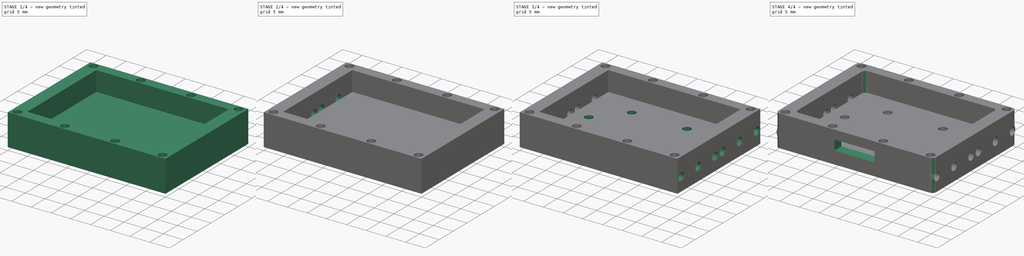
[diagram: build sequence overview — one tinted view per stage of 4, left to right]
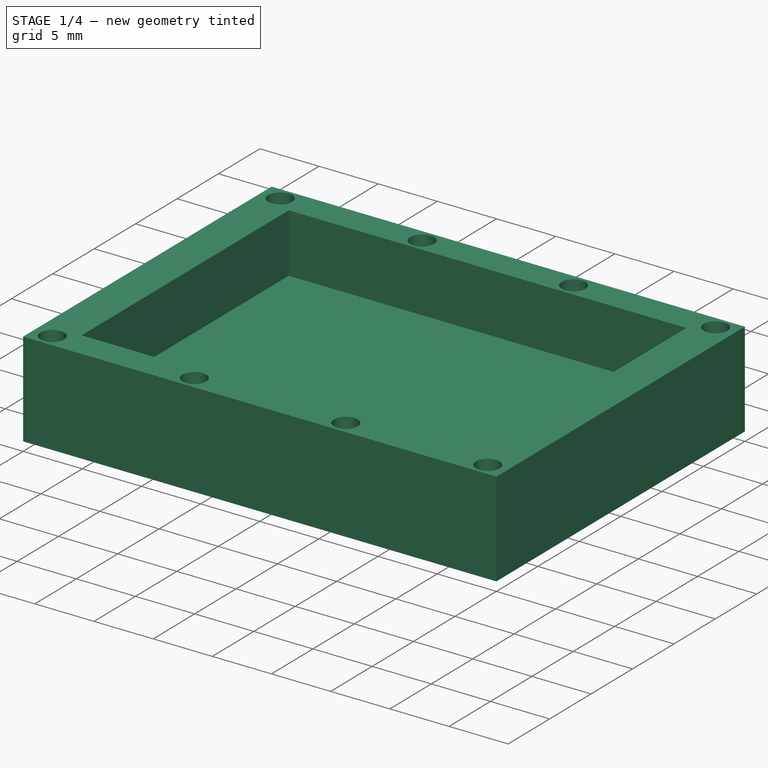
[diagram: stage 1 of 4 — iso view after this stage's code; geometry added in this stage tinted green]
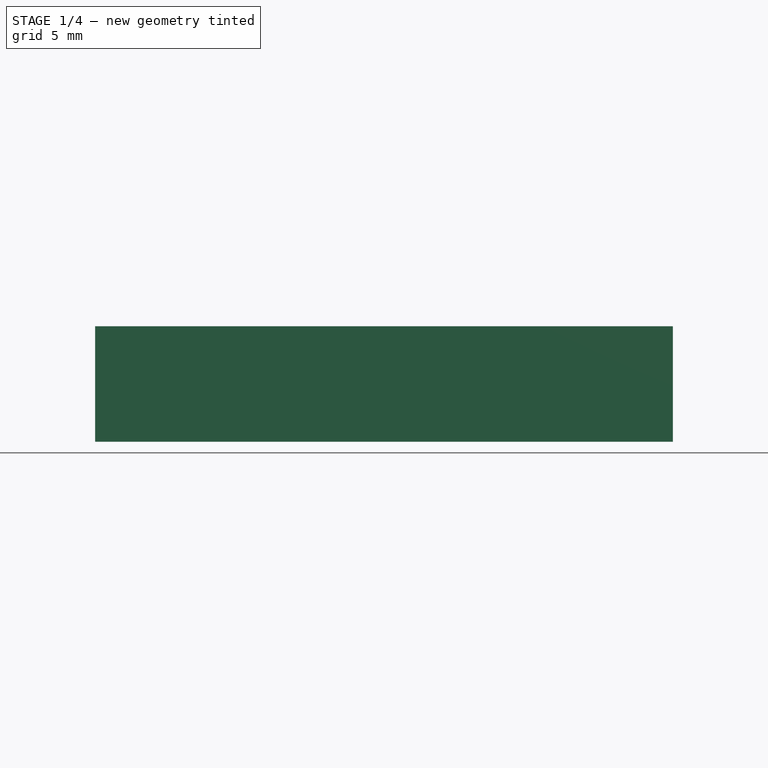
[diagram: stage 1 of 4 — front view after this stage's code; geometry added in this stage tinted green]
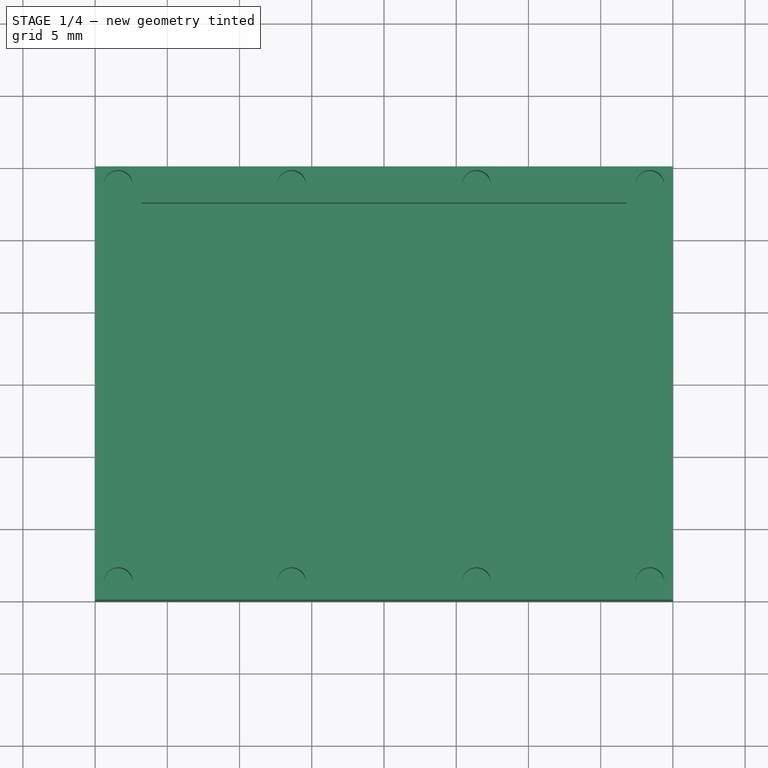
[diagram: stage 1 of 4 — top view after this stage's code; geometry added in this stage tinted green]
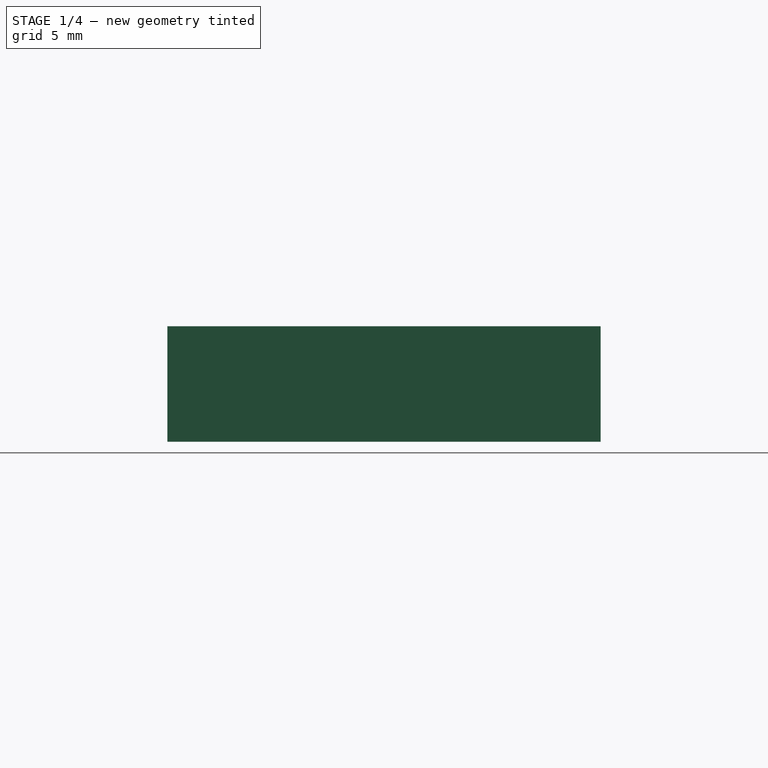
[diagram: stage 1 of 4 — right view after this stage's code; geometry added in this stage tinted green]
FCSTD DOCUMENT  (FreeCAD 0.18.4R)
Label: Sample_Holder_FP_Box_v1
License: All rights reserved
LicenseURL: http://en.wikipedia.org/wiki/All_rights_reserved
objects: Sketcher::SketchObject×7, PartDesign::Pocket×7, PartDesign::Pad×1, PartDesign::Fillet×1, PartDesign::Body×1
note: 25 computed .brp shape members not serialized (recipe doc carries the construction recipe); baked Part::Feature solids carry a one-line shape summary decoded from their .brp

FEATURE [Sketcher::SketchObject] Sketch
  MapMode = 2
  Support = -> [Sketch]
  sketch-geometry (4):
    g0: LineSegment StartX=-20 StartY=15 StartZ=0 EndX=20 EndY=15 EndZ=0
    g1: LineSegment StartX=20 StartY=15 StartZ=0 EndX=20 EndY=-15 EndZ=0
    g2: LineSegment StartX=20 StartY=-15 StartZ=0 EndX=-20 EndY=-15 EndZ=0
    g3: LineSegment StartX=-20 StartY=-15 StartZ=0 EndX=-20 EndY=15 EndZ=0
  constraints (12):
    c: Coincident(g0,g1)
    c: Coincident(g1,g2)
    c: Coincident(g2,g3)
    c: Coincident(g3,g0)
    c: Horizontal(g0)
    c: Horizontal(g2)
    c: Vertical(g1)
    c: Vertical(g3)
    c: DistanceX(g2,g2) = 40
    c: DistanceY(g1,g1) = 30
    c: DistanceY(g-1,g0) = 15
    c: DistanceX(g0,g-1) = 20
FEATURE [PartDesign::Pad] Pad
  Length = 8
  Length2 = 100
  Profile = -> Sketch
  Type = 0
FEATURE [Sketcher::SketchObject] Sketch001
  MapMode = 5
  Placement = pos=(0,0,8) rot=(0,0,1;0rad)
  Support = -> [Pad]
  sketch-geometry (12):
    g0: LineSegment StartX=-16.8 StartY=12.5 StartZ=0 EndX=16.8 EndY=12.5 EndZ=0
    g1: LineSegment StartX=16.8 StartY=12.5 StartZ=0 EndX=16.8 EndY=-12.5 EndZ=0
    g2: LineSegment StartX=16.8 StartY=-12.5 StartZ=0 EndX=-16.8 EndY=-12.5 EndZ=0
    g3: LineSegment StartX=-16.8 StartY=-12.5 StartZ=0 EndX=-16.8 EndY=12.5 EndZ=0
    g4: Circle CenterX=-18.4 CenterY=13.75 CenterZ=0 NormalX=0 NormalY=0 NormalZ=1 AngleXU=0 Radius=1
    g5: Circle CenterX=-6.4 CenterY=13.75 CenterZ=0 NormalX=0 NormalY=0 NormalZ=1 AngleXU=0 Radius=1
    g6: Circle CenterX=6.4 CenterY=13.75 CenterZ=0 NormalX=0 NormalY=0 NormalZ=1 AngleXU=0 Radius=1
    g7: Circle CenterX=18.4 CenterY=13.75 CenterZ=0 NormalX=0 NormalY=0 NormalZ=1 AngleXU=0 Radius=1
    g8: Circle CenterX=-18.4 CenterY=-13.75 CenterZ=0 NormalX=0 NormalY=0 NormalZ=1 AngleXU=0 Radius=1
    g9: Circle CenterX=-6.4 CenterY=-13.75 CenterZ=0 NormalX=0 NormalY=0 NormalZ=1 AngleXU=0 Radius=1
    g10: Circle CenterX=6.4 CenterY=-13.75 CenterZ=0 NormalX=0 NormalY=0 NormalZ=1 AngleXU=0 Radius=1
    g11: Circle CenterX=18.4 CenterY=-13.75 CenterZ=0 NormalX=0 NormalY=0 NormalZ=1 AngleXU=0 Radius=1
  constraints (29):
    c: Coincident(g0,g1)
    c: Coincident(g1,g2)
    c: Coincident(g2,g3)
    c: Coincident(g3,g0)
    c: Horizontal(g0)
    c: Horizontal(g2)
    c: Vertical(g1)
    c: Vertical(g3)
    c: DistanceX(g2,g2) = 33.6
    c: DistanceY(g1,g1) = 25
    c: DistanceX(g-1,g0) = 16.8
    c: DistanceY(g1,g-1) = 12.5
    c: Diameter(g7) = 2
    c: Equal(g7,g6)
    c: Equal(g7,g5)
    c: Equal(g7,g4)
    c: Equal(g7, g8-g11) x4
    c: Symmetric(g4,g8,g-1)
    c: Symmetric(g5,g9,g-1)
    c: Symmetric(g6,g10,g-1)
    c: Symmetric(g11,g7,g-1)
    c: Horizontal(g4,g5)
    c: Horizontal(g5,g6)
    c: Horizontal(g6,g7)
    c: DistanceY(g-1,g4) = 13.75
    c: DistanceX(g8,g2) = 1.6
    c: DistanceX(g1,g11) = 1.6
    c: DistanceX(g8,g9) = 12
    c: DistanceX(g10,g11) = 12
FEATURE [PartDesign::Pocket] Pocket
  BaseFeature = -> Pad
  Length = 5
  Length2 = 100
  Profile = -> Sketch001
  Type = 0
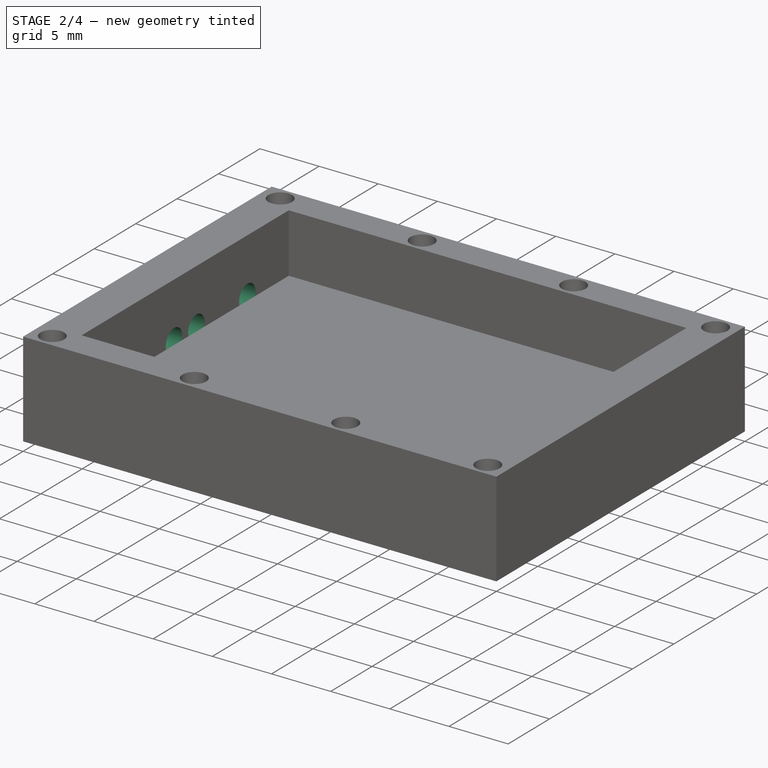
[diagram: stage 2 of 4 — iso view after this stage's code; geometry added in this stage tinted green]
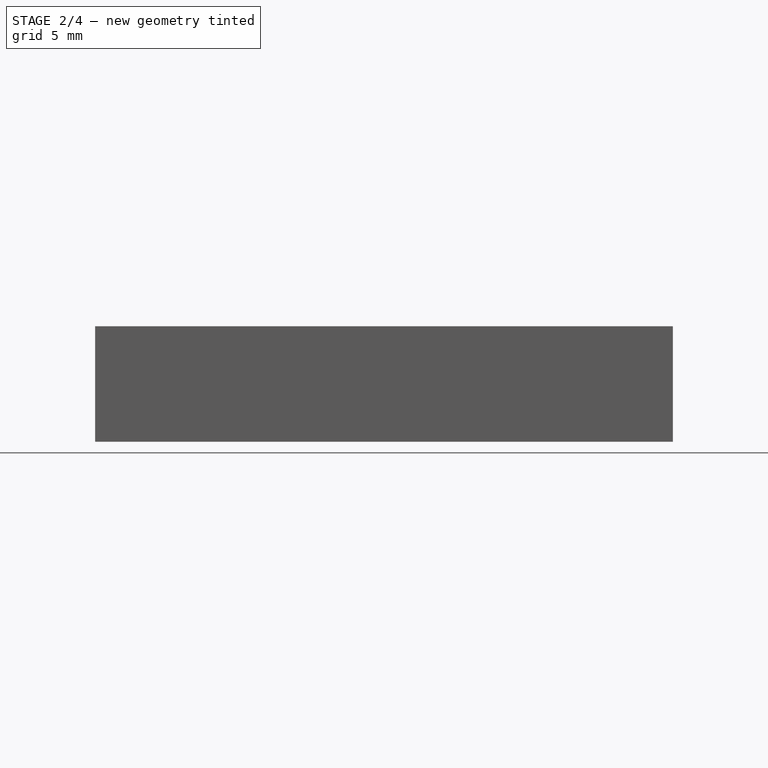
[diagram: stage 2 of 4 — front view after this stage's code; geometry added in this stage tinted green]
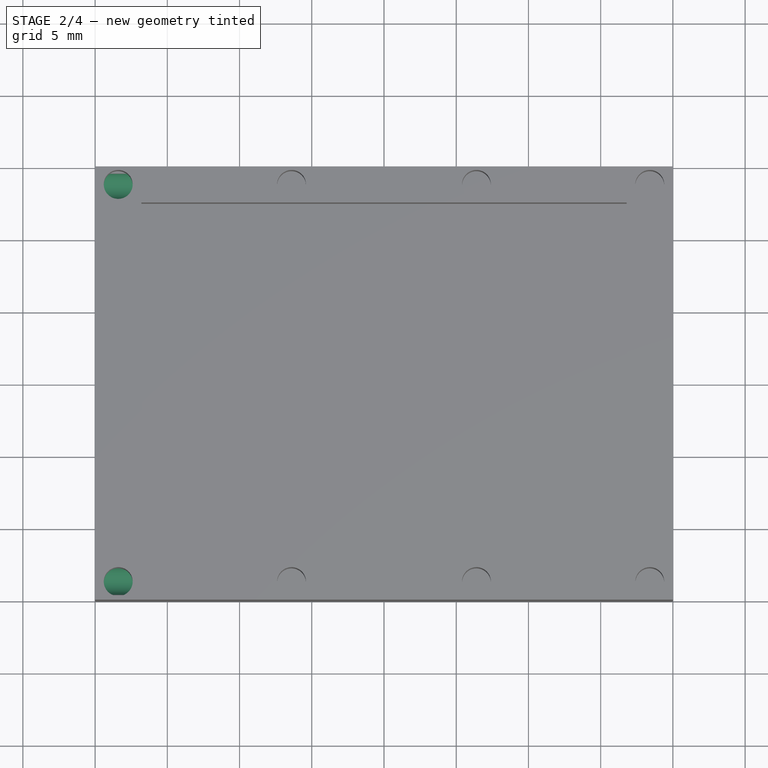
[diagram: stage 2 of 4 — top view after this stage's code; geometry added in this stage tinted green]
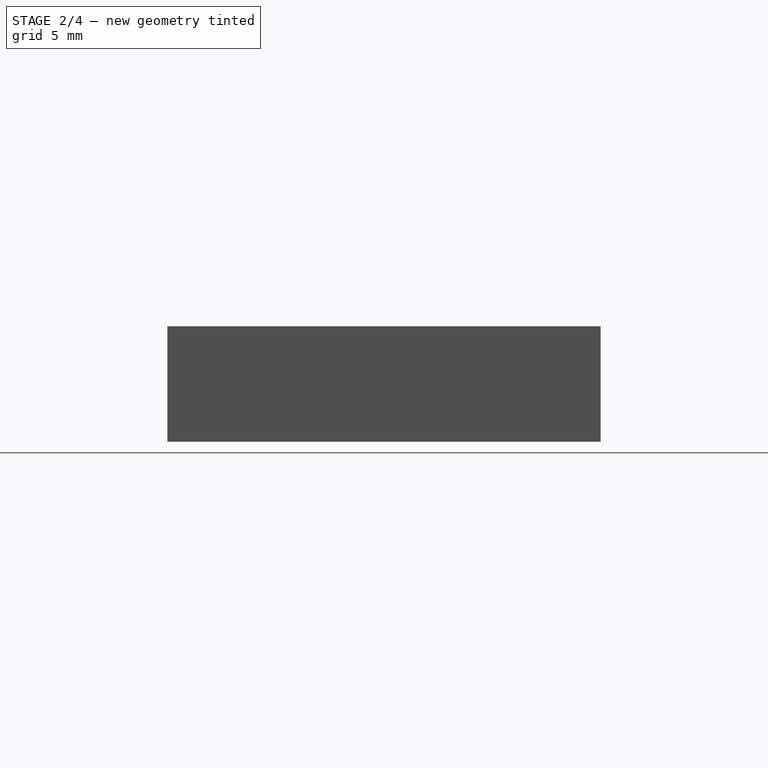
[diagram: stage 2 of 4 — right view after this stage's code; geometry added in this stage tinted green]
FEATURE [Sketcher::SketchObject] Sketch002
  MapMode = 5
  Placement = pos=(-20,0,0) rot=(0.57735,-0.57735,-0.57735;2.0944rad)
  Support = -> [Pocket]
  sketch-geometry (6):
    g0: Circle CenterX=-13.65 CenterY=3.3 CenterZ=0 NormalX=0 NormalY=0 NormalZ=1 AngleXU=0 Radius=1
    g1: Circle CenterX=-1.35 CenterY=3.3 CenterZ=0 NormalX=0 NormalY=0 NormalZ=1 AngleXU=0 Radius=1
    g2: Circle CenterX=-7.5 CenterY=3.3 CenterZ=0 NormalX=0 NormalY=0 NormalZ=1 AngleXU=0 Radius=1
    g3: Circle CenterX=13.65 CenterY=3.3 CenterZ=0 NormalX=0 NormalY=0 NormalZ=1 AngleXU=0 Radius=1
    g4: Circle CenterX=1.35 CenterY=3.3 CenterZ=0 NormalX=0 NormalY=0 NormalZ=1 AngleXU=0 Radius=1
    g5: Circle CenterX=7.5 CenterY=3.3 CenterZ=0 NormalX=0 NormalY=0 NormalZ=1 AngleXU=0 Radius=1
  constraints (15):
    c: Diameter(g2) = 2
    c: DistanceY(g-1,g0) = 3.3
    c: DistanceX(g2,g1) = 6.15
    c: DistanceX(g0,g2) = 6.15
    c: DistanceX(g2,g-1) = 7.5
    c: Horizontal(g0,g2)
    c: Horizontal(g2,g1)
    c: Radius(g1) = 1
    c: Equal(g1,g0)
    c: Diameter(g5) = 2
    c: Radius(g4) = 1
    c: Equal(g4,g3)
    c: Symmetric(g1,g4,g-2)
    c: Symmetric(g2,g5,g-2)
    c: Symmetric(g3,g0,g-2)
FEATURE [PartDesign::Pocket] Pocket001
  BaseFeature = -> Pocket
  Length = 3.2
  Length2 = 100
  Profile = -> Sketch002
  Type = 0
FEATURE [PartDesign::Pocket] Pocket002
  BaseFeature = -> Pocket001
  Length = 3.2
  Length2 = 100
  Profile = -> Sketch002
  Type = 0
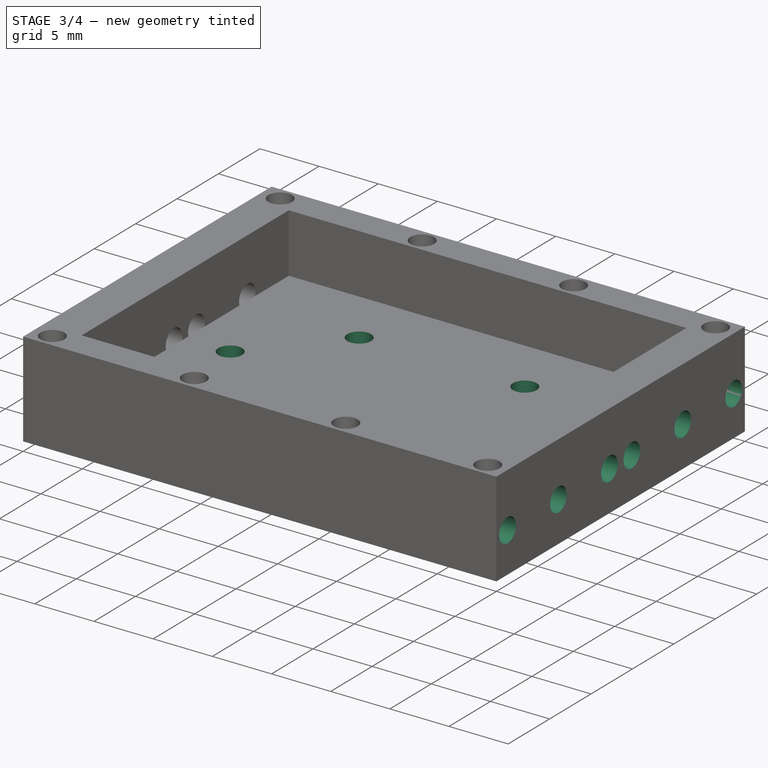
[diagram: stage 3 of 4 — iso view after this stage's code; geometry added in this stage tinted green]
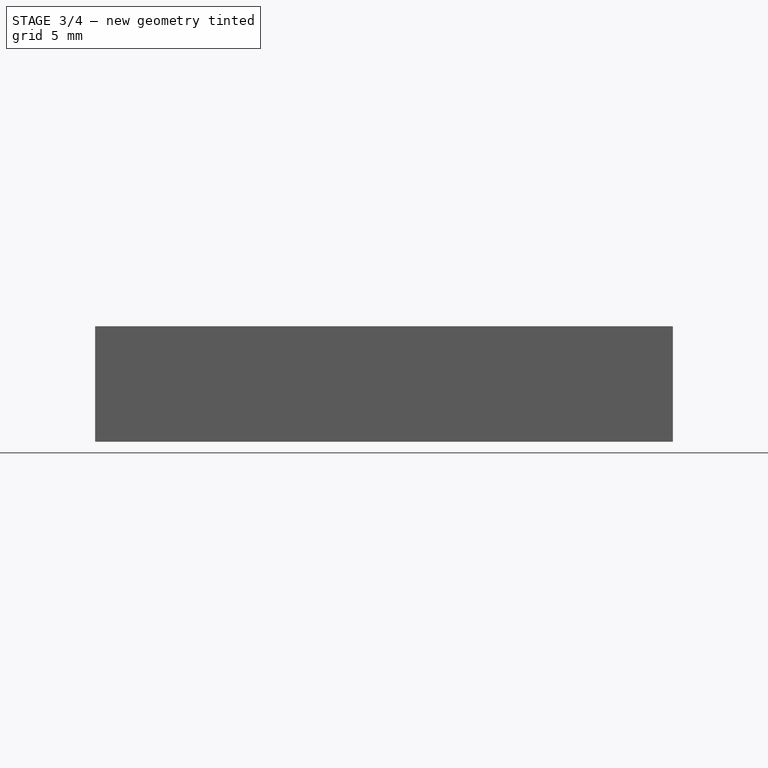
[diagram: stage 3 of 4 — front view after this stage's code; geometry added in this stage tinted green]
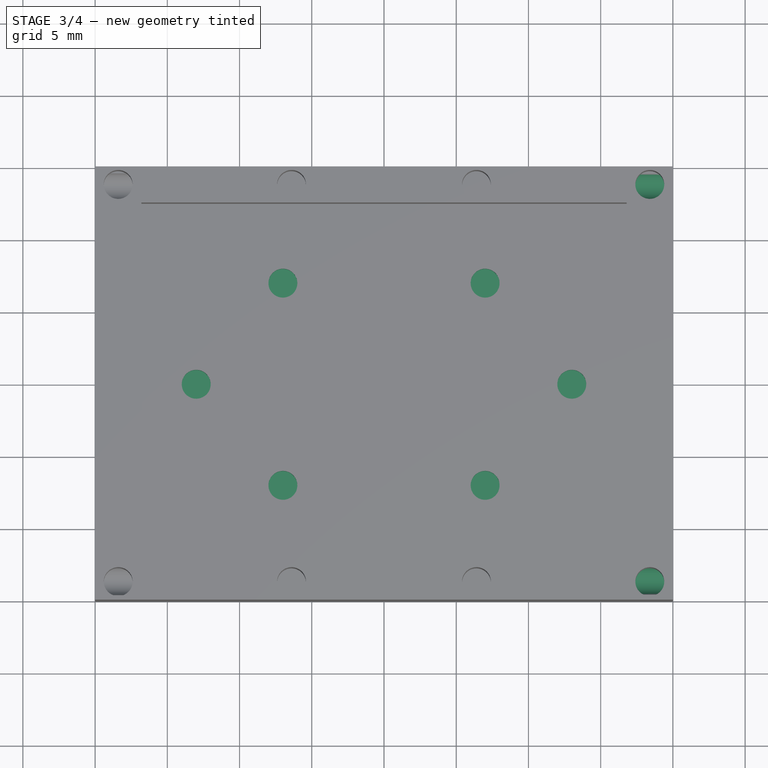
[diagram: stage 3 of 4 — top view after this stage's code; geometry added in this stage tinted green]
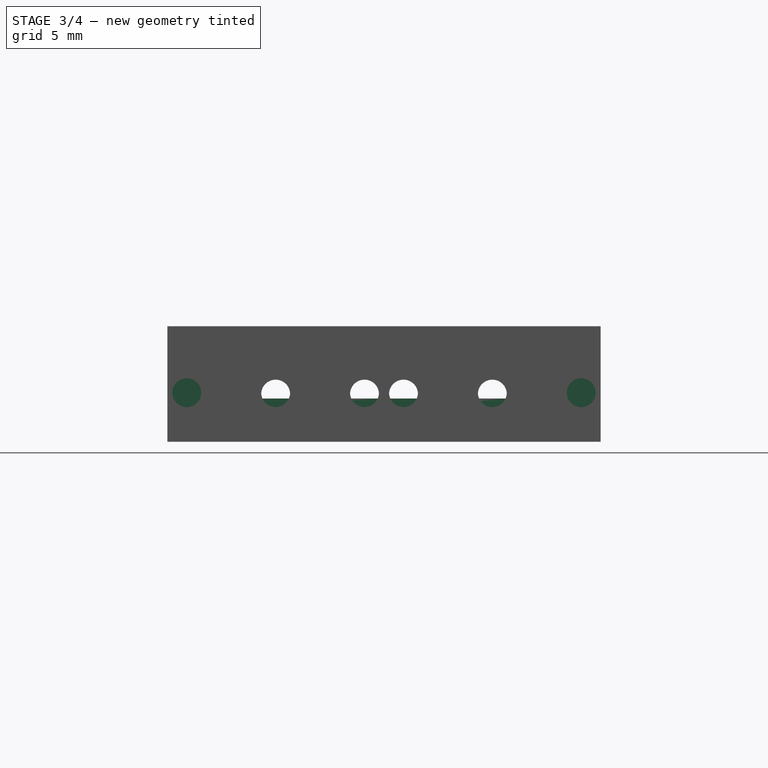
[diagram: stage 3 of 4 — right view after this stage's code; geometry added in this stage tinted green]
FEATURE [Sketcher::SketchObject] Sketch003
  MapMode = 5
  Placement = pos=(0,0,5) rot=(0,0,1;0rad)
  sketch-geometry (6):
    g0: Circle CenterX=-7 CenterY=7 CenterZ=0 NormalX=0 NormalY=0 NormalZ=1 AngleXU=0 Radius=1
    g1: Circle CenterX=7 CenterY=7 CenterZ=0 NormalX=0 NormalY=0 NormalZ=1 AngleXU=0 Radius=1
    g2: Circle CenterX=7 CenterY=-7 CenterZ=0 NormalX=0 NormalY=0 NormalZ=1 AngleXU=0 Radius=1
    g3: Circle CenterX=-7 CenterY=-7 CenterZ=0 NormalX=0 NormalY=0 NormalZ=1 AngleXU=0 Radius=1
    g4: Circle CenterX=-13 CenterY=0 CenterZ=0 NormalX=0 NormalY=0 NormalZ=1 AngleXU=0 Radius=1
    g5: Circle CenterX=13 CenterY=0 CenterZ=0 NormalX=0 NormalY=0 NormalZ=1 AngleXU=0 Radius=1
  constraints (14):
    c: Symmetric(g2,g1,g-1)
    c: Symmetric(g0,g3,g-1)
    c: Radius(g0) = 1
    c: Equal(g0,g1)
    c: Equal(g0,g2)
    c: Equal(g0,g3)
    c: DistanceY(g-1,g1) = 7
    c: Symmetric(g2,g3,g-2)
    c: DistanceX(g3,g-1) = 7
    c: Symmetric(g5,g4,g-2)
    c: DistanceX(g4,g-1) = 13
    c: DistanceY(g-1,g4) = 0
    c: Radius(g5) = 1
    c: Equal(g5,g4)
FEATURE [PartDesign::Pocket] Pocket003
  BaseFeature = -> Pocket002
  Length = 3
  Length2 = 100
  Profile = -> Sketch003
  Type = 0
FEATURE [Sketcher::SketchObject] Sketch004
  MapMode = 5
  Placement = pos=(0,0,0) rot=(1,0,0;3.14159rad)
  Support = -> [Pocket003]
  sketch-geometry (6):
    g0: Circle CenterX=-10 CenterY=5 CenterZ=0 NormalX=0 NormalY=0 NormalZ=1 AngleXU=0 Radius=1
    g1: Circle CenterX=0 CenterY=5 CenterZ=0 NormalX=0 NormalY=0 NormalZ=1 AngleXU=0 Radius=1
    g2: Circle CenterX=10 CenterY=5 CenterZ=0 NormalX=0 NormalY=0 NormalZ=1 AngleXU=0 Radius=1
    g3: Circle CenterX=10 CenterY=-5 CenterZ=0 NormalX=0 NormalY=0 NormalZ=1 AngleXU=0 Radius=1
    g4: Circle CenterX=0 CenterY=-5 CenterZ=0 NormalX=0 NormalY=0 NormalZ=1 AngleXU=0 Radius=1
    g5: Circle CenterX=-10 CenterY=-5 CenterZ=0 NormalX=0 NormalY=0 NormalZ=1 AngleXU=0 Radius=1
  constraints (15):
    c: Radius(g0) = 1
    c: Equal(g0,g1)
    c: Equal(g0,g5)
    c: Equal(g0,g4)
    c: Equal(g0,g3)
    c: Equal(g0,g2)
    c: Symmetric(g2,g3,g-1)
    c: Symmetric(g1,g4,g-1)
    c: Symmetric(g0,g5,g-1)
    c: Horizontal(g2,g1)
    c: Horizontal(g1,g0)
    c: DistanceX(g4,g3) = 10
    c: DistanceX(g5,g4) = 10
    c: DistanceX(g1,g-1) = 0
    c: DistanceY(g-1,g1) = 5
FEATURE [PartDesign::Pocket] Pocket004
  BaseFeature = -> Pocket003
  Length = 2
  Length2 = 100
  Profile = -> Sketch004
  Type = 0
FEATURE [Sketcher::SketchObject] Sketch005
  MapMode = 5
  Placement = pos=(20,0,0) rot=(0.57735,0.57735,0.57735;2.0944rad)
  sketch-geometry (6):
    g0: Circle CenterX=1.35 CenterY=3.4 CenterZ=0 NormalX=0 NormalY=0 NormalZ=1 AngleXU=0 Radius=1
    g1: Circle CenterX=13.65 CenterY=3.4 CenterZ=0 NormalX=0 NormalY=0 NormalZ=1 AngleXU=0 Radius=1
    g2: Circle CenterX=7.5 CenterY=3.4 CenterZ=0 NormalX=0 NormalY=0 NormalZ=1 AngleXU=0 Radius=1
    g3: Circle CenterX=-1.35 CenterY=3.4 CenterZ=0 NormalX=0 NormalY=0 NormalZ=1 AngleXU=0 Radius=1
    g4: Circle CenterX=-13.65 CenterY=3.4 CenterZ=0 NormalX=0 NormalY=0 NormalZ=1 AngleXU=0 Radius=1
    g5: Circle CenterX=-7.5 CenterY=3.4 CenterZ=0 NormalX=0 NormalY=0 NormalZ=1 AngleXU=0 Radius=1
  constraints (15):
    c: Radius(g2) = 1
    c: DistanceX(g-1,g2) = 7.5
    c: DistanceX(g0,g2) = 6.15
    c: Horizontal(g0,g2)
    c: Horizontal(g2,g1)
    c: DistanceY(g-1,g1) = 3.4
    c: Radius(g0) = 1
    c: Equal(g0,g1)
    c: DistanceX(g2,g1) = 6.15
    c: Radius(g5) = 1
    c: Radius(g3) = 1
    c: Equal(g3,g4)
    c: Symmetric(g0,g3,g-2)
    c: Symmetric(g5,g2,g-2)
    c: Symmetric(g4,g1,g-2)
FEATURE [PartDesign::Pocket] Pocket005
  BaseFeature = -> Pocket004
  Length = 3.2
  Length2 = 100
  Profile = -> Sketch005
  Type = 0
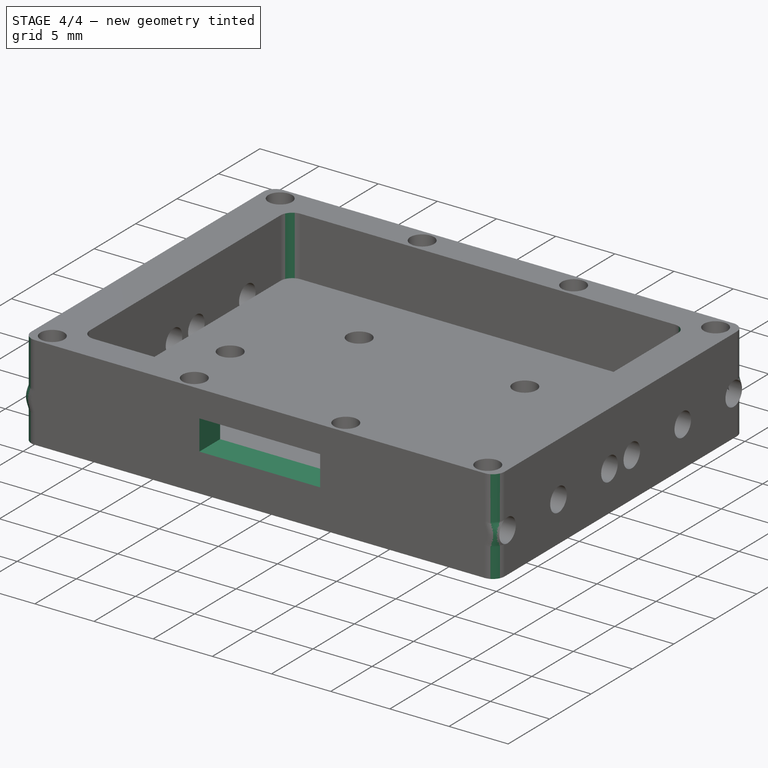
[diagram: stage 4 of 4 — iso view after this stage's code; geometry added in this stage tinted green]
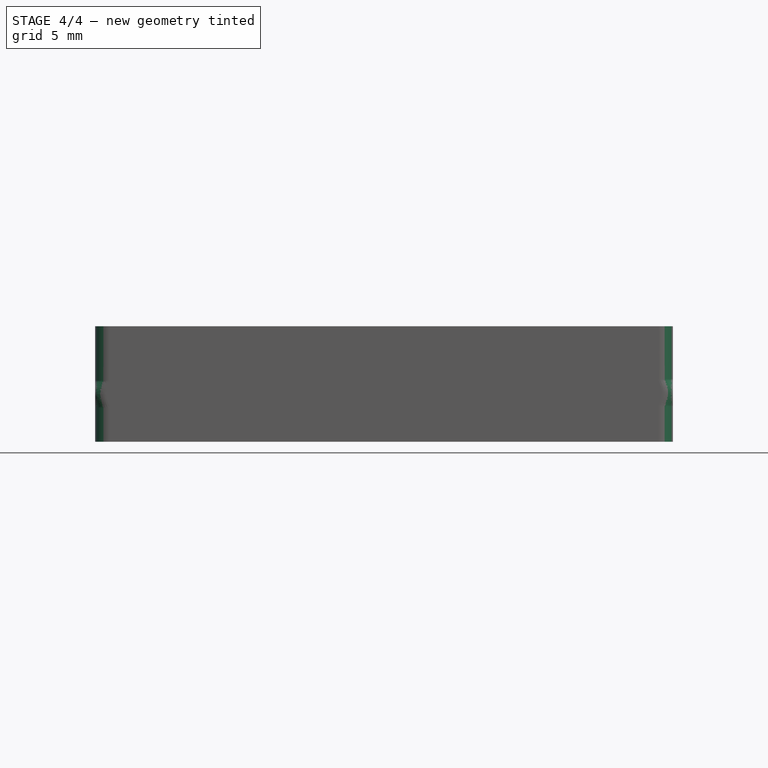
[diagram: stage 4 of 4 — front view after this stage's code; geometry added in this stage tinted green]
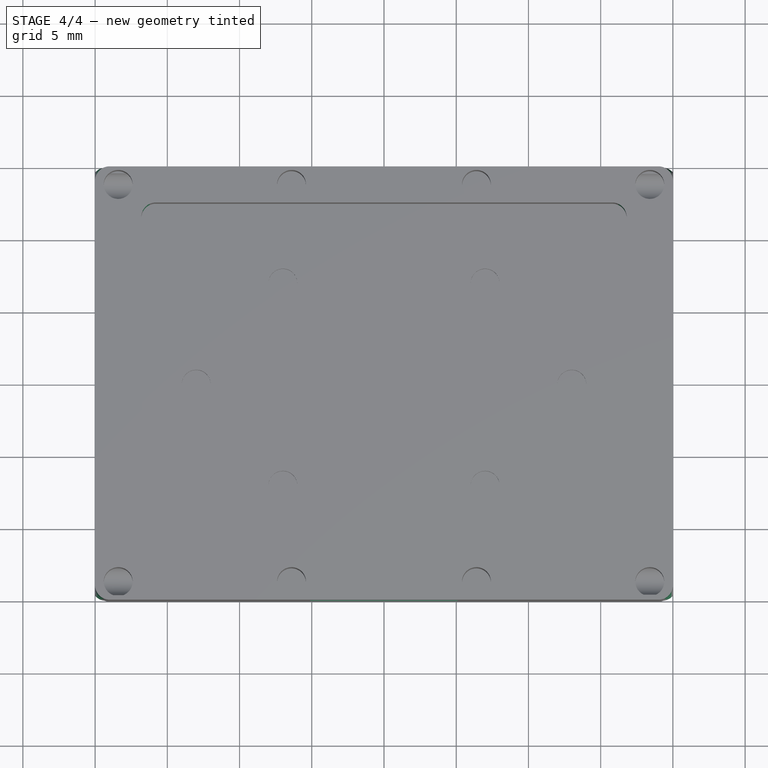
[diagram: stage 4 of 4 — top view after this stage's code; geometry added in this stage tinted green]
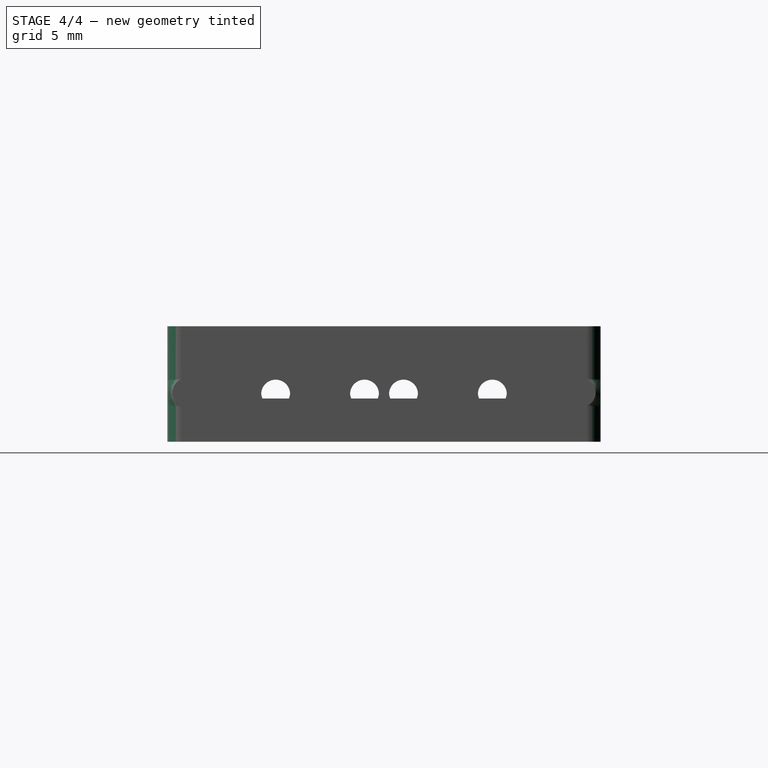
[diagram: stage 4 of 4 — right view after this stage's code; geometry added in this stage tinted green]
FEATURE [Sketcher::SketchObject] Sketch007
  MapMode = 5
  Placement = pos=(0,-15,0) rot=(1,0,0;1.5708rad)
  Support = -> [Pocket005]
  sketch-geometry (4):
    g0: LineSegment StartX=-5.1 StartY=5.74 StartZ=0 EndX=5.1 EndY=5.74 EndZ=0
    g1: LineSegment StartX=5.1 StartY=5.74 StartZ=0 EndX=5.1 EndY=3.2 EndZ=0
    g2: LineSegment StartX=5.1 StartY=3.2 StartZ=0 EndX=-5.1 EndY=3.2 EndZ=0
    g3: LineSegment StartX=-5.1 StartY=3.2 StartZ=0 EndX=-5.1 EndY=5.74 EndZ=0
  constraints (12):
    c: Coincident(g0,g1)
    c: Coincident(g1,g2)
    c: Coincident(g2,g3)
    c: Coincident(g3,g0)
    c: Horizontal(g0)
    c: Horizontal(g2)
    c: Vertical(g1)
    c: Vertical(g3)
    c: DistanceX(g2,g2) = 10.2
    c: DistanceX(g2,g-1) = 5.1
    c: DistanceY(g1,g1) = 2.54
    c: DistanceY(g-1,g1) = 3.2
FEATURE [PartDesign::Pocket] Pocket006
  BaseFeature = -> Pocket005
  Length = 2.5
  Length2 = 100
  Profile = -> Sketch007
  Type = 0
FEATURE [PartDesign::Fillet] Fillet
  Base = -> Pocket006 [Edge5,Edge1,Edge16,Edge129,Edge2,Edge122,Edge119,Edge120]
  BaseFeature = -> Pocket006
  Radius = 1
FEATURE [PartDesign::Body] Body
  Group = -> [Sketch,Pad,Sketch001,Pocket,Sketch002,Pocket001,Pocket002,Sketch003,Pocket003,Sketch004,Pocket004,Sketch005,Pocket005,Sketch007,Pocket006,Fillet]
  Origin = -> Origin
  Tip = -> Fillet
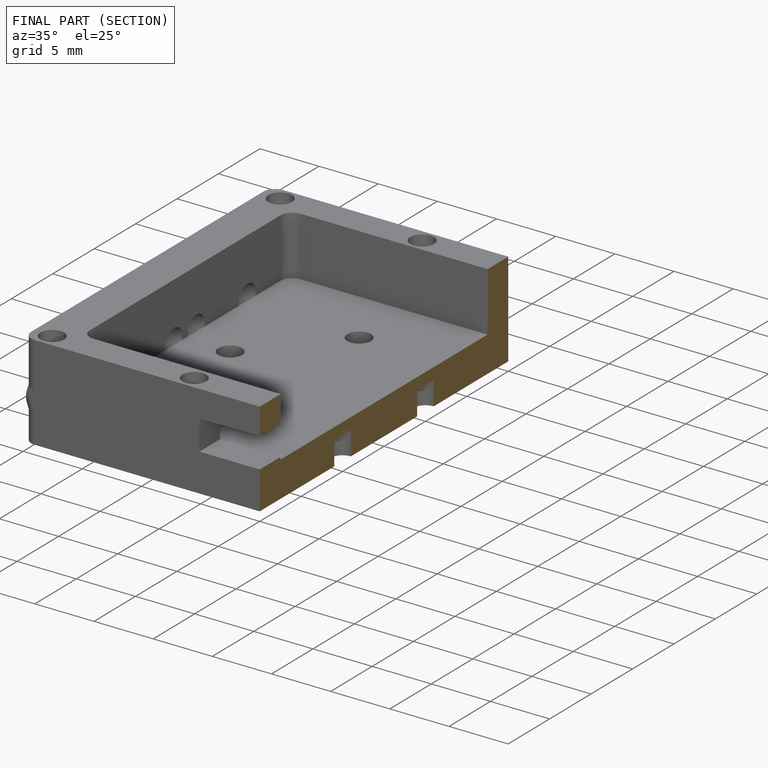
[diagram: finished part — half-section view (interior)]
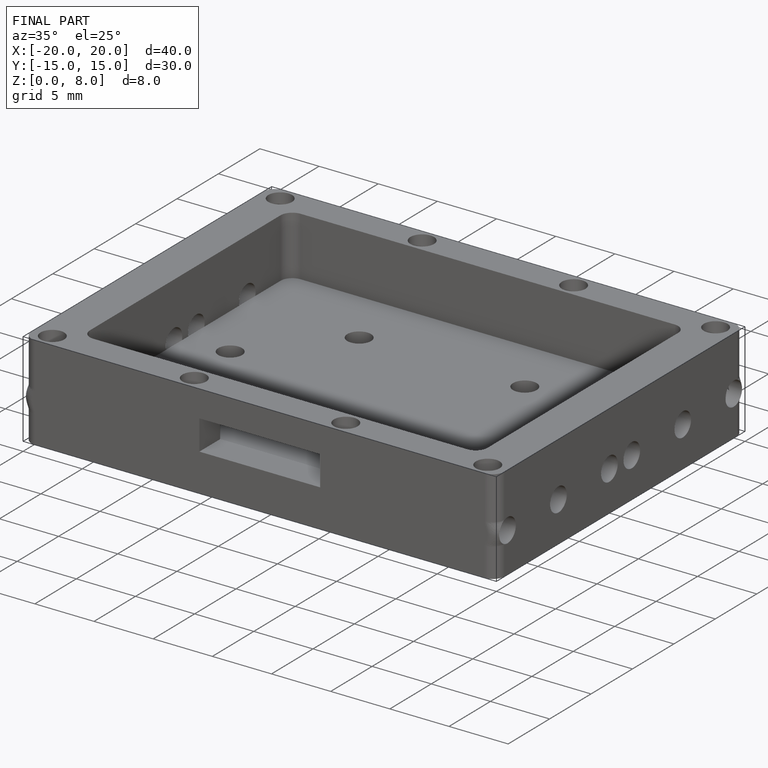
[diagram: finished part — iso view with bounding-box wireframe]
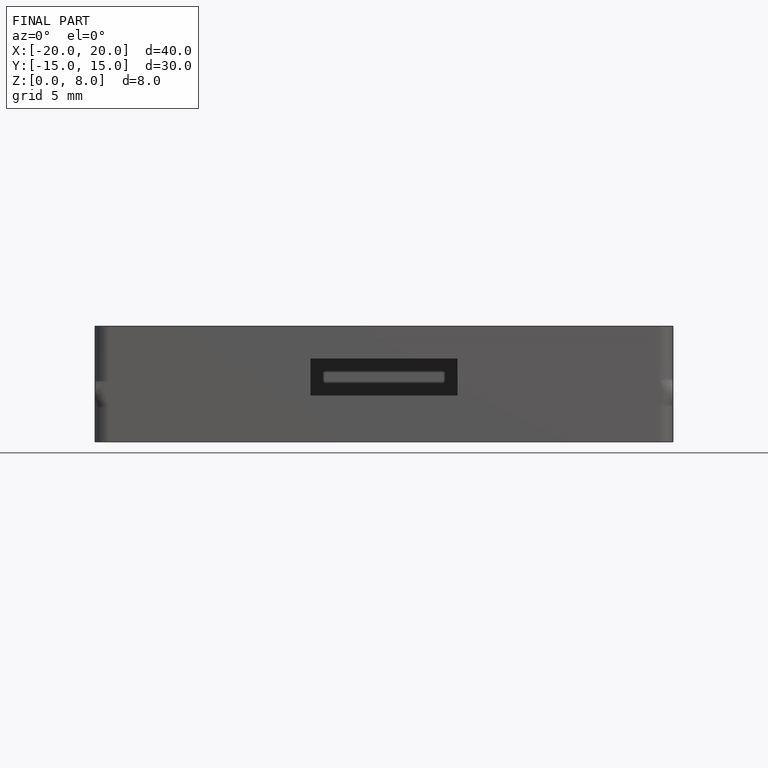
[diagram: finished part — front view with bounding-box wireframe]
